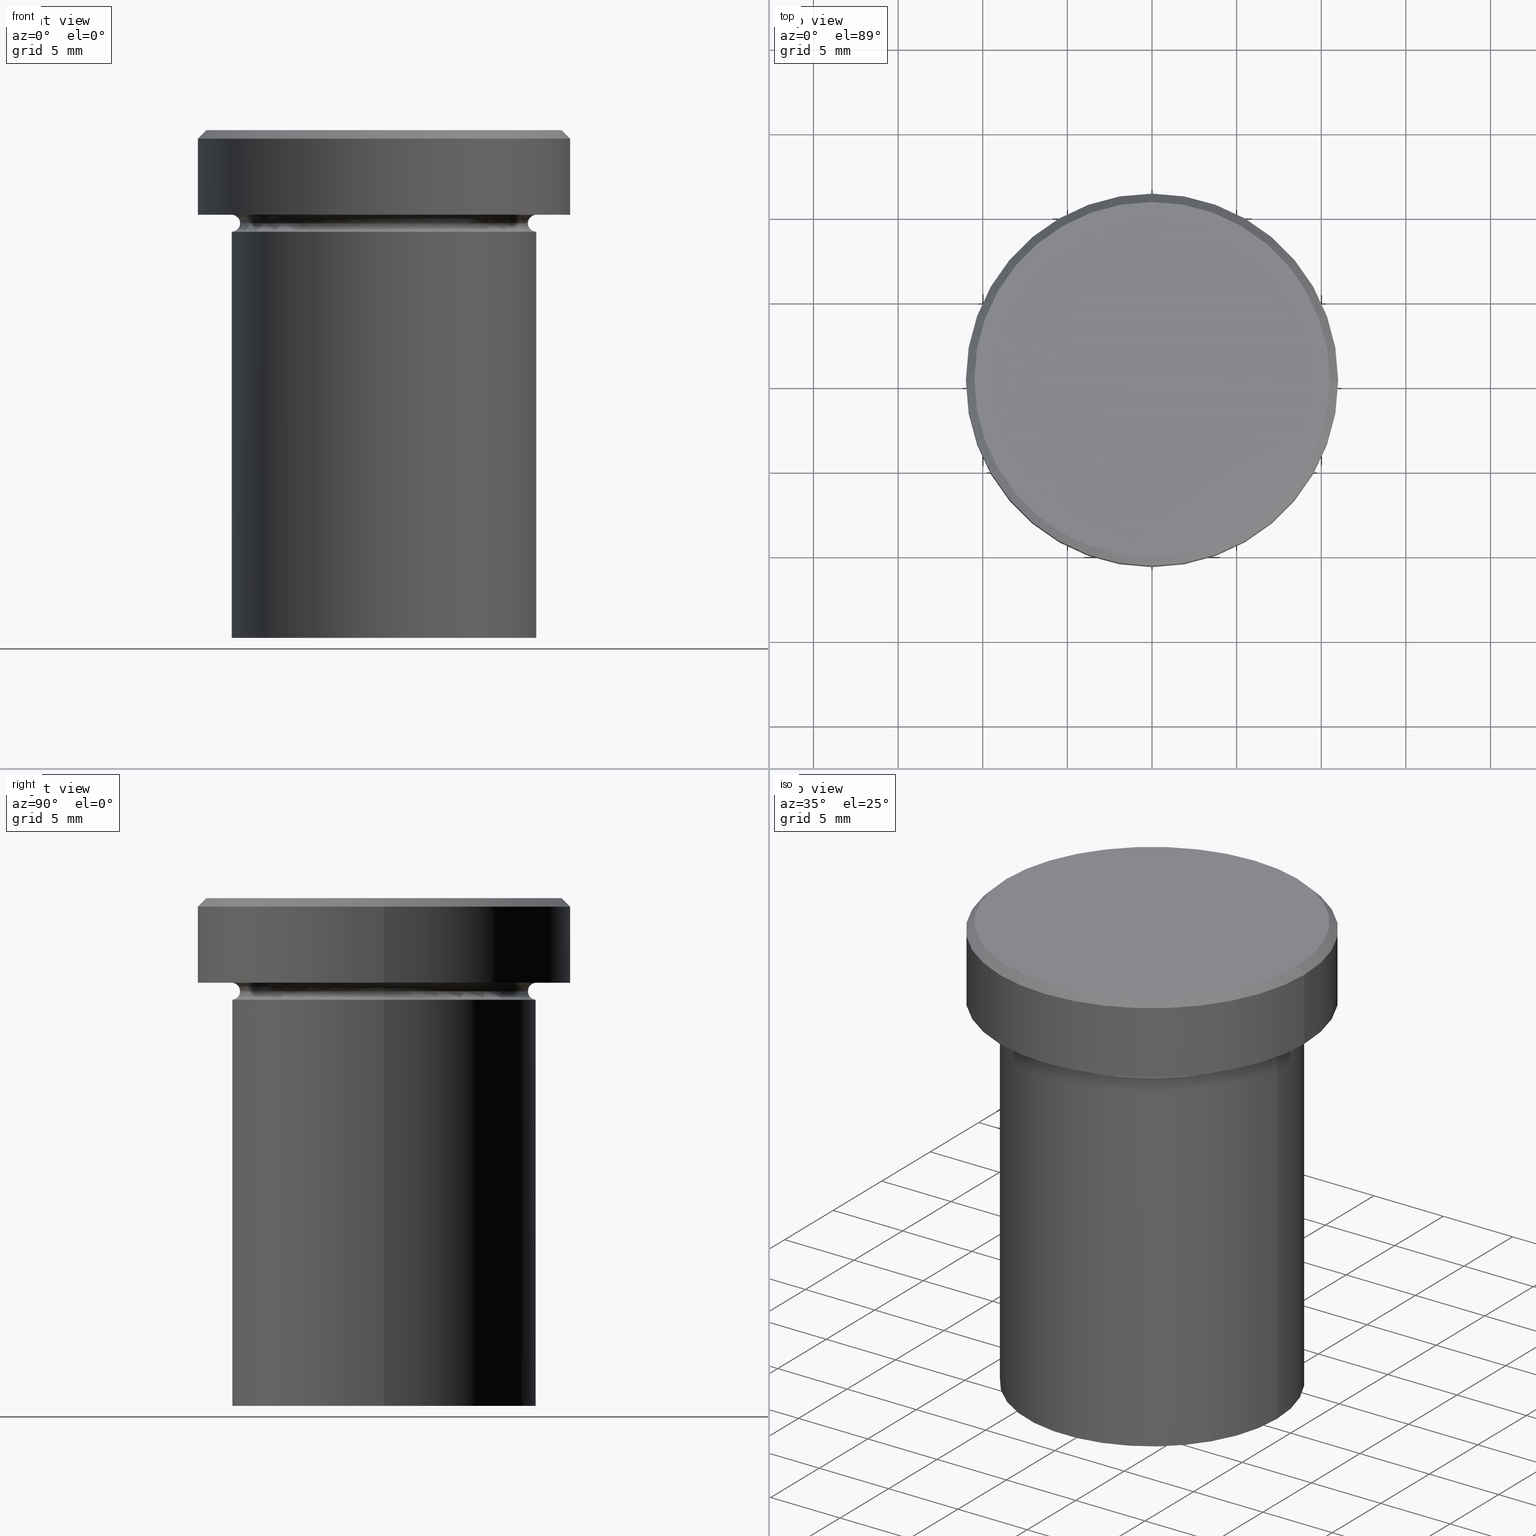
[diagram: canonical four-view strip — front | top / right | iso, engineering-drawing reading convention]
A machine part, canonical four-view strip (front | top / right | iso — engineering-drawing reading convention). The complete STEP part file that produces these views, byte-faithful:
ISO-10303-21;
HEADER;
FILE_DESCRIPTION (( 'STEP AP203' ),
    '1' );
FILE_NAME ('3700.STEP',
    '2024-01-02T22:01:14',
    ( '' ),
    ( '' ),
    'SwSTEP 2.0',
    'SolidWorks 2019',
    '' );
FILE_SCHEMA (( 'CONFIG_CONTROL_DESIGN' ));
ENDSEC;

DATA;
#1 = CARTESIAN_POINT ( 'NONE',  ( 0.000000000000000000, 11.00000000000000000, -5.000000000000000000 ) ) ;
#2 = DATE_AND_TIME ( #245, #222 ) ;
#3 = EDGE_CURVE ( 'NONE', #217, #158, #297, .T. ) ;
#4 = APPROVAL_ROLE ( '' ) ;
#5 = EDGE_LOOP ( 'NONE', ( #279, #346, #209, #164 ) ) ;
#6 = CARTESIAN_POINT ( 'NONE',  ( 0.000000000000000000, 9.000000000000000000, -30.00000000000000000 ) ) ;
#7 = TOROIDAL_SURFACE ( 'NONE', #42, 9.000000000000000000, 0.5000000000000000000 ) ;
#8 =( GEOMETRIC_REPRESENTATION_CONTEXT ( 3 ) GLOBAL_UNCERTAINTY_ASSIGNED_CONTEXT ( ( #397 ) ) GLOBAL_UNIT_ASSIGNED_CONTEXT ( ( #310, #129, #348 ) ) REPRESENTATION_CONTEXT ( 'NONE', 'WORKASPACE' ) );
#9 = ADVANCED_FACE ( 'NONE', ( #95 ), #268, .T. ) ;
#10 = ORIENTED_EDGE ( 'NONE', *, *, #102, .T. ) ;
#11 = PERSON_AND_ORGANIZATION_ROLE ( 'design_supplier' ) ;
#12 = LINE ( 'NONE', #354, #38 ) ;
#13 = DIRECTION ( 'NONE',  ( -0.000000000000000000, -0.000000000000000000, 1.000000000000000000 ) ) ;
#14 = APPROVAL_STATUS ( 'not_yet_approved' ) ;
#15 = DIRECTION ( 'NONE',  ( 1.000000000000000000, 0.000000000000000000, 0.000000000000000000 ) ) ;
#16 = PRODUCT_DEFINITION ( 'NEZN�M�', '', #306, #99 ) ;
#17 = LOCAL_TIME ( 23, 1, 14.00000000000000000, #27 ) ;
#18 = DIRECTION ( 'NONE',  ( -1.000000000000000000, 0.000000000000000000, 0.000000000000000000 ) ) ;
#19 = DIRECTION ( 'NONE',  ( -0.000000000000000000, -0.000000000000000000, 1.000000000000000000 ) ) ;
#20 = DIRECTION ( 'NONE',  ( 0.000000000000000000, 0.000000000000000000, -1.000000000000000000 ) ) ;
#21 = ORIENTED_EDGE ( 'NONE', *, *, #333, .T. ) ;
#22 = CARTESIAN_POINT ( 'NONE',  ( -11.00000000000000000, 1.347111479062088405E-15, -5.000000000000000000 ) ) ;
#23 = DIRECTION ( 'NONE',  ( 1.000000000000000000, 0.000000000000000000, 0.000000000000000000 ) ) ;
#24 = AXIS2_PLACEMENT_3D ( 'NONE', #198, #293, #288 ) ;
#25 = ADVANCED_FACE ( 'NONE', ( #400 ), #238, .T. ) ;
#26 = FACE_OUTER_BOUND ( 'NONE', #29, .T. ) ;
#27 = COORDINATED_UNIVERSAL_TIME_OFFSET ( 1, 0, .AHEAD. ) ;
#28 = DIRECTION ( 'NONE',  ( -0.000000000000000000, -0.000000000000000000, 1.000000000000000000 ) ) ;
#29 = EDGE_LOOP ( 'NONE', ( #351, #173, #393, #36 ) ) ;
#30 = ADVANCED_BREP_SHAPE_REPRESENTATION ( '3700', ( #148, #212 ), #8 ) ;
#31 = CC_DESIGN_DATE_AND_TIME_ASSIGNMENT ( #392, #258, ( #16 ) ) ;
#32 = AXIS2_PLACEMENT_3D ( 'NONE', #196, #256, #200 ) ;
#33 = DIRECTION ( 'NONE',  ( -0.000000000000000000, -0.000000000000000000, 1.000000000000000000 ) ) ;
#34 = DIRECTION ( 'NONE',  ( 0.000000000000000000, 0.000000000000000000, 1.000000000000000000 ) ) ;
#35 = VERTEX_POINT ( 'NONE', #335 ) ;
#36 = ORIENTED_EDGE ( 'NONE', *, *, #119, .T. ) ;
#37 = APPROVAL ( #281, 'NEUR�EN�' ) ;
#38 = VECTOR ( 'NONE', #19, 1000.000000000000000 ) ;
#39 = DIRECTION ( 'NONE',  ( -0.7071067811865474617, 0.000000000000000000, -0.7071067811865474617 ) ) ;
#40 = EDGE_CURVE ( 'NONE', #407, #46, #312, .T. ) ;
#41 = ORIENTED_EDGE ( 'NONE', *, *, #190, .F. ) ;
#42 = AXIS2_PLACEMENT_3D ( 'NONE', #83, #13, #249 ) ;
#43 = COORDINATED_UNIVERSAL_TIME_OFFSET ( 1, 0, .AHEAD. ) ;
#44 = DIRECTION ( 'NONE',  ( 0.000000000000000000, 0.000000000000000000, -1.000000000000000000 ) ) ;
#45 = FACE_OUTER_BOUND ( 'NONE', #369, .T. ) ;
#46 = VERTEX_POINT ( 'NONE', #180 ) ;
#47 = CARTESIAN_POINT ( 'NONE',  ( 11.00000000000000000, 0.000000000000000000, 0.000000000000000000 ) ) ;
#48 = CARTESIAN_POINT ( 'NONE',  ( -8.499999999999998224, 1.071565949253933927E-15, -5.500000000000000000 ) ) ;
#49 = CONICAL_SURFACE ( 'NONE', #72, 10.49999999999999822, 0.7853981633974482790 ) ;
#50 = CARTESIAN_POINT ( 'NONE',  ( 0.000000000000000000, 0.000000000000000000, -5.000000000000000000 ) ) ;
#51 = CALENDAR_DATE ( 2024, 2, 1 ) ;
#52 = DIRECTION ( 'NONE',  ( 0.000000000000000000, -1.000000000000000000, 0.000000000000000000 ) ) ;
#53 = APPROVAL_DATE_TIME ( #328, #309 ) ;
#54 = CC_DESIGN_PERSON_AND_ORGANIZATION_ASSIGNMENT ( #381, #11, ( #306 ) ) ;
#55 = DIRECTION ( 'NONE',  ( 1.000000000000000000, 0.000000000000000000, 0.000000000000000000 ) ) ;
#56 = DIRECTION ( 'NONE',  ( 0.000000000000000000, 0.000000000000000000, -1.000000000000000000 ) ) ;
#57 = CIRCLE ( 'NONE', #359, 0.5000000000000004441 ) ;
#58 = CC_DESIGN_SECURITY_CLASSIFICATION ( #139, ( #306 ) ) ;
#59 = ORIENTED_EDGE ( 'NONE', *, *, #40, .T. ) ;
#60 = ADVANCED_FACE ( 'NONE', ( #26 ), #301, .T. ) ;
#61 = ORIENTED_EDGE ( 'NONE', *, *, #247, .T. ) ;
#62 = ORIENTED_EDGE ( 'NONE', *, *, #280, .T. ) ;
#63 = DIRECTION ( 'NONE',  ( -0.000000000000000000, -0.000000000000000000, 1.000000000000000000 ) ) ;
#64 = CIRCLE ( 'NONE', #401, 9.000000000000000000 ) ;
#65 = ORIENTED_EDGE ( 'NONE', *, *, #259, .T. ) ;
#66 = CARTESIAN_POINT ( 'NONE',  ( 0.000000000000000000, 0.000000000000000000, -5.000000000000000000 ) ) ;
#67 = EDGE_CURVE ( 'NONE', #253, #208, #110, .T. ) ;
#68 = DIRECTION ( 'NONE',  ( 0.000000000000000000, 0.000000000000000000, -1.000000000000000000 ) ) ;
#69 = FACE_OUTER_BOUND ( 'NONE', #316, .T. ) ;
#70 = CARTESIAN_POINT ( 'NONE',  ( -11.00000000000000000, 1.347111479062088405E-15, -0.5000000000000004441 ) ) ;
#71 = PERSON_AND_ORGANIZATION_ROLE ( 'creator' ) ;
#72 = AXIS2_PLACEMENT_3D ( 'NONE', #390, #20, #18 ) ;
#73 = DATE_AND_TIME ( #243, #177 ) ;
#74 = CARTESIAN_POINT ( 'NONE',  ( 11.00000000000000000, 0.000000000000000000, -0.5000000000000004441 ) ) ;
#75 = EDGE_CURVE ( 'NONE', #35, #108, #271, .T. ) ;
#76 = PERSON_AND_ORGANIZATION ( #260, #395 ) ;
#77 = PERSON_AND_ORGANIZATION ( #260, #395 ) ;
#78 = APPROVAL_DATE_TIME ( #2, #319 ) ;
#79 = AXIS2_PLACEMENT_3D ( 'NONE', #361, #320, #97 ) ;
#80 = CC_DESIGN_APPROVAL ( #309, ( #139 ) ) ;
#81 = ORIENTED_EDGE ( 'NONE', *, *, #333, .F. ) ;
#82 = EDGE_LOOP ( 'NONE', ( #137, #123, #121, #380 ) ) ;
#83 = CARTESIAN_POINT ( 'NONE',  ( 0.000000000000000000, 0.000000000000000000, -5.500000000000000000 ) ) ;
#84 = CC_DESIGN_PERSON_AND_ORGANIZATION_ASSIGNMENT ( #365, #206, ( #302 ) ) ;
#85 = APPROVAL_ROLE ( '' ) ;
#86 = DIRECTION ( 'NONE',  ( -0.000000000000000000, -0.000000000000000000, 1.000000000000000000 ) ) ;
#87 = ORIENTED_EDGE ( 'NONE', *, *, #119, .F. ) ;
#88 = CALENDAR_DATE ( 2024, 2, 1 ) ;
#89 = CIRCLE ( 'NONE', #305, 11.00000000000000000 ) ;
#90 = FACE_OUTER_BOUND ( 'NONE', #287, .T. ) ;
#91 = APPROVAL_PERSON_ORGANIZATION ( #76, #37, #4 ) ;
#92 = EDGE_CURVE ( 'NONE', #321, #367, #159, .T. ) ;
#93 = PERSON_AND_ORGANIZATION ( #260, #395 ) ;
#94 = CARTESIAN_POINT ( 'NONE',  ( 0.000000000000000000, 0.000000000000000000, -6.000000000000000000 ) ) ;
#95 = FACE_OUTER_BOUND ( 'NONE', #270, .T. ) ;
#96 = DIRECTION ( 'NONE',  ( -0.000000000000000000, -0.000000000000000000, 1.000000000000000000 ) ) ;
#97 = DIRECTION ( 'NONE',  ( 0.000000000000000000, 0.000000000000000000, -1.000000000000000000 ) ) ;
#98 = ORIENTED_EDGE ( 'NONE', *, *, #202, .F. ) ;
#99 = DESIGN_CONTEXT ( 'detailed design', #355, 'design' ) ;
#100 = DIRECTION ( 'NONE',  ( 1.000000000000000000, 0.000000000000000000, 0.000000000000000000 ) ) ;
#101 = CIRCLE ( 'NONE', #138, 11.00000000000000000 ) ;
#102 = EDGE_CURVE ( 'NONE', #46, #299, #104, .T. ) ;
#103 = DIRECTION ( 'NONE',  ( 0.7071067811865474617, 8.659560562354932858E-17, -0.7071067811865474617 ) ) ;
#104 = LINE ( 'NONE', #162, #195 ) ;
#105 = LOCAL_TIME ( 23, 1, 14.00000000000000000, #43 ) ;
#106 = DIRECTION ( 'NONE',  ( -1.000000000000000000, -1.224646799147353454E-16, 0.000000000000000000 ) ) ;
#107 = FACE_OUTER_BOUND ( 'NONE', #5, .T. ) ;
#108 = VERTEX_POINT ( 'NONE', #74 ) ;
#109 = CARTESIAN_POINT ( 'NONE',  ( 0.000000000000000000, 0.000000000000000000, 0.000000000000000000 ) ) ;
#110 = CIRCLE ( 'NONE', #199, 8.499999999999998224 ) ;
#111 = ORIENTED_EDGE ( 'NONE', *, *, #92, .T. ) ;
#112 = DIRECTION ( 'NONE',  ( -1.000000000000000000, 0.000000000000000000, 0.000000000000000000 ) ) ;
#113 = DIRECTION ( 'NONE',  ( -0.000000000000000000, -0.000000000000000000, 1.000000000000000000 ) ) ;
#114 = EDGE_CURVE ( 'NONE', #219, #35, #221, .T. ) ;
#115 = SHAPE_DEFINITION_REPRESENTATION ( #236, #30 ) ;
#116 = AXIS2_PLACEMENT_3D ( 'NONE', #376, #342, #383 ) ;
#117 = CARTESIAN_POINT ( 'NONE',  ( 0.000000000000000000, 0.000000000000000000, 0.000000000000000000 ) ) ;
#118 = CARTESIAN_POINT ( 'NONE',  ( 0.000000000000000000, 0.000000000000000000, -30.00000000000000000 ) ) ;
#119 = EDGE_CURVE ( 'NONE', #108, #158, #170, .T. ) ;
#120 = VECTOR ( 'NONE', #231, 1000.000000000000000 ) ;
#121 = ORIENTED_EDGE ( 'NONE', *, *, #404, .F. ) ;
#122 = CARTESIAN_POINT ( 'NONE',  ( 0.000000000000000000, 0.000000000000000000, 0.000000000000000000 ) ) ;
#123 = ORIENTED_EDGE ( 'NONE', *, *, #75, .T. ) ;
#124 = MECHANICAL_CONTEXT ( 'NONE', #224, 'mechanical' ) ;
#125 = ORIENTED_EDGE ( 'NONE', *, *, #370, .F. ) ;
#126 = ADVANCED_FACE ( 'NONE', ( #172 ), #203, .F. ) ;
#127 = CARTESIAN_POINT ( 'NONE',  ( 9.000000000000000000, 1.102182119232617714E-15, -5.500000000000000000 ) ) ;
#128 = PLANE ( 'NONE',  #338 ) ;
#129 =( NAMED_UNIT ( * ) PLANE_ANGLE_UNIT ( ) SI_UNIT ( $, .RADIAN. ) );
#130 = ORIENTED_EDGE ( 'NONE', *, *, #75, .F. ) ;
#131 = EDGE_CURVE ( 'NONE', #407, #303, #12, .T. ) ;
#132 = CIRCLE ( 'NONE', #292, 9.000000000000000000 ) ;
#133 = CC_DESIGN_APPROVAL ( #319, ( #306 ) ) ;
#134 = DIRECTION ( 'NONE',  ( 0.000000000000000000, -0.000000000000000000, 1.000000000000000000 ) ) ;
#135 = APPLICATION_PROTOCOL_DEFINITION ( 'international standard', 'config_control_design', 1994, #224 ) ;
#136 = EDGE_CURVE ( 'NONE', #217, #214, #101, .T. ) ;
#137 = ORIENTED_EDGE ( 'NONE', *, *, #182, .F. ) ;
#138 = AXIS2_PLACEMENT_3D ( 'NONE', #387, #174, #150 ) ;
#139 = SECURITY_CLASSIFICATION ( '', '', #322 ) ;
#140 = CARTESIAN_POINT ( 'NONE',  ( -10.49999999999999822, 0.000000000000000000, 0.000000000000000000 ) ) ;
#141 = ADVANCED_FACE ( 'NONE', ( #69 ), #188, .T. ) ;
#142 = CIRCLE ( 'NONE', #324, 8.499999999999998224 ) ;
#143 = EDGE_LOOP ( 'NONE', ( #111, #62 ) ) ;
#144 = PERSON_AND_ORGANIZATION ( #260, #395 ) ;
#145 = CARTESIAN_POINT ( 'NONE',  ( 0.000000000000000000, 0.000000000000000000, 0.000000000000000000 ) ) ;
#146 = ORIENTED_EDGE ( 'NONE', *, *, #171, .T. ) ;
#147 = EDGE_CURVE ( 'NONE', #303, #299, #64, .T. ) ;
#148 = MANIFOLD_SOLID_BREP ( 'Zkosen�1', #151 ) ;
#149 = DIRECTION ( 'NONE',  ( 1.000000000000000000, 0.000000000000000000, 0.000000000000000000 ) ) ;
#150 = DIRECTION ( 'NONE',  ( 1.000000000000000000, 0.000000000000000000, 0.000000000000000000 ) ) ;
#151 = CLOSED_SHELL ( 'NONE', ( #339, #126, #155, #25, #9, #141, #349, #60, #160, #197, #327, #295, #218 ) ) ;
#152 = CIRCLE ( 'NONE', #204, 0.5000000000000004441 ) ;
#153 = CARTESIAN_POINT ( 'NONE',  ( 0.000000000000000000, 0.000000000000000000, -5.000000000000000000 ) ) ;
#154 = DIRECTION ( 'NONE',  ( 1.000000000000000000, 0.000000000000000000, 0.000000000000000000 ) ) ;
#155 = ADVANCED_FACE ( 'NONE', ( #300 ), #364, .F. ) ;
#156 = DIRECTION ( 'NONE',  ( 1.000000000000000000, 0.000000000000000000, 0.000000000000000000 ) ) ;
#157 = CARTESIAN_POINT ( 'NONE',  ( 0.000000000000000000, 0.000000000000000000, 0.000000000000000000 ) ) ;
#158 = VERTEX_POINT ( 'NONE', #70 ) ;
#159 = CIRCLE ( 'NONE', #226, 9.000000000000000000 ) ;
#160 = ADVANCED_FACE ( 'NONE', ( #284, #186 ), #128, .T. ) ;
#161 = DIRECTION ( 'NONE',  ( 1.224646799147353207E-16, 1.000000000000000000, 0.000000000000000000 ) ) ;
#162 = CARTESIAN_POINT ( 'NONE',  ( 9.000000000000000000, 0.000000000000000000, 0.000000000000000000 ) ) ;
#163 = DIRECTION ( 'NONE',  ( -1.000000000000000000, 0.000000000000000000, 0.000000000000000000 ) ) ;
#164 = ORIENTED_EDGE ( 'NONE', *, *, #280, .F. ) ;
#165 = CIRCLE ( 'NONE', #215, 10.49999999999999822 ) ;
#166 = APPROVAL_PERSON_ORGANIZATION ( #93, #309, #252 ) ;
#167 = CARTESIAN_POINT ( 'NONE',  ( 0.000000000000000000, 0.000000000000000000, -0.5000000000000004441 ) ) ;
#168 = CARTESIAN_POINT ( 'NONE',  ( -9.000000000000000000, 0.000000000000000000, -4.999999999999999112 ) ) ;
#169 = FACE_OUTER_BOUND ( 'NONE', #181, .T. ) ;
#170 = CIRCLE ( 'NONE', #388, 11.00000000000000000 ) ;
#171 = EDGE_CURVE ( 'NONE', #219, #158, #216, .T. ) ;
#172 = FACE_OUTER_BOUND ( 'NONE', #334, .T. ) ;
#173 = ORIENTED_EDGE ( 'NONE', *, *, #136, .T. ) ;
#174 = DIRECTION ( 'NONE',  ( -0.000000000000000000, -0.000000000000000000, 1.000000000000000000 ) ) ;
#175 = AXIS2_PLACEMENT_3D ( 'NONE', #6, #382, #296 ) ;
#176 = CONICAL_SURFACE ( 'NONE', #325, 10.49999999999999822, 0.7853981633974482790 ) ;
#177 = LOCAL_TIME ( 23, 1, 14.00000000000000000, #379 ) ;
#178 = DIRECTION ( 'NONE',  ( -1.000000000000000000, 0.000000000000000000, 0.000000000000000000 ) ) ;
#179 = ORIENTED_EDGE ( 'NONE', *, *, #398, .F. ) ;
#180 = CARTESIAN_POINT ( 'NONE',  ( 9.000000000000000000, 0.000000000000000000, -30.00000000000000000 ) ) ;
#181 = EDGE_LOOP ( 'NONE', ( #130, #193, #146, #87 ) ) ;
#182 = EDGE_CURVE ( 'NONE', #35, #219, #165, .T. ) ;
#183 = TOROIDAL_SURFACE ( 'NONE', #343, 9.000000000000000000, 0.5000000000000000000 ) ;
#184 = CARTESIAN_POINT ( 'NONE',  ( 0.000000000000000000, 0.000000000000000000, 0.000000000000000000 ) ) ;
#185 = CARTESIAN_POINT ( 'NONE',  ( 9.000000000000000000, 0.000000000000000000, -6.000000000000000000 ) ) ;
#186 = FACE_OUTER_BOUND ( 'NONE', #358, .T. ) ;
#187 = DIRECTION ( 'NONE',  ( -0.000000000000000000, -0.000000000000000000, 1.000000000000000000 ) ) ;
#188 = PLANE ( 'NONE',  #175 ) ;
#189 = AXIS2_PLACEMENT_3D ( 'NONE', #244, #63, #156 ) ;
#190 = EDGE_CURVE ( 'NONE', #208, #253, #142, .T. ) ;
#191 = APPROVAL_DATE_TIME ( #73, #37 ) ;
#192 = ORIENTED_EDGE ( 'NONE', *, *, #190, .T. ) ;
#193 = ORIENTED_EDGE ( 'NONE', *, *, #114, .F. ) ;
#194 = CC_DESIGN_PERSON_AND_ORGANIZATION_ASSIGNMENT ( #77, #71, ( #306 ) ) ;
#195 = VECTOR ( 'NONE', #403, 1000.000000000000000 ) ;
#196 = CARTESIAN_POINT ( 'NONE',  ( 0.000000000000000000, 0.000000000000000000, 0.000000000000000000 ) ) ;
#197 = ADVANCED_FACE ( 'NONE', ( #230 ), #294, .T. ) ;
#198 = CARTESIAN_POINT ( 'NONE',  ( 0.000000000000000000, 0.000000000000000000, -5.500000000000000000 ) ) ;
#199 = AXIS2_PLACEMENT_3D ( 'NONE', #229, #33, #149 ) ;
#200 = DIRECTION ( 'NONE',  ( 1.000000000000000000, 0.000000000000000000, 0.000000000000000000 ) ) ;
#201 = DIRECTION ( 'NONE',  ( -0.000000000000000000, -0.000000000000000000, 1.000000000000000000 ) ) ;
#202 = EDGE_CURVE ( 'NONE', #208, #321, #241, .T. ) ;
#203 = TOROIDAL_SURFACE ( 'NONE', #24, 9.000000000000000000, 0.5000000000000000000 ) ;
#204 = AXIS2_PLACEMENT_3D ( 'NONE', #273, #161, #314 ) ;
#205 = DIRECTION ( 'NONE',  ( 1.000000000000000000, 0.000000000000000000, 0.000000000000000000 ) ) ;
#206 = PERSON_AND_ORGANIZATION_ROLE ( 'design_owner' ) ;
#207 = EDGE_CURVE ( 'NONE', #253, #299, #57, .T. ) ;
#208 = VERTEX_POINT ( 'NONE', #48 ) ;
#209 = ORIENTED_EDGE ( 'NONE', *, *, #202, .T. ) ;
#210 = DIRECTION ( 'NONE',  ( 1.000000000000000000, 0.000000000000000000, 0.000000000000000000 ) ) ;
#211 = AXIS2_PLACEMENT_3D ( 'NONE', #127, #366, #106 ) ;
#212 = AXIS2_PLACEMENT_3D ( 'NONE', #122, #34, #154 ) ;
#213 = ORIENTED_EDGE ( 'NONE', *, *, #247, .F. ) ;
#214 = VERTEX_POINT ( 'NONE', #357 ) ;
#215 = AXIS2_PLACEMENT_3D ( 'NONE', #145, #239, #308 ) ;
#216 = LINE ( 'NONE', #345, #272 ) ;
#217 = VERTEX_POINT ( 'NONE', #22 ) ;
#218 = ADVANCED_FACE ( 'NONE', ( #169 ), #49, .T. ) ;
#219 = VERTEX_POINT ( 'NONE', #140 ) ;
#220 = EDGE_LOOP ( 'NONE', ( #41, #337, #227, #240 ) ) ;
#221 = CIRCLE ( 'NONE', #116, 10.49999999999999822 ) ;
#222 = LOCAL_TIME ( 23, 1, 14.00000000000000000, #248 ) ;
#223 = PERSON_AND_ORGANIZATION ( #260, #395 ) ;
#224 = APPLICATION_CONTEXT ( 'configuration controlled 3d designs of mechanical parts and assemblies' ) ;
#225 = DIRECTION ( 'NONE',  ( 1.000000000000000000, 0.000000000000000000, 0.000000000000000000 ) ) ;
#226 = AXIS2_PLACEMENT_3D ( 'NONE', #153, #187, #374 ) ;
#227 = ORIENTED_EDGE ( 'NONE', *, *, #147, .T. ) ;
#228 = CARTESIAN_POINT ( 'NONE',  ( 0.000000000000000000, 0.000000000000000000, -5.500000000000000000 ) ) ;
#229 = CARTESIAN_POINT ( 'NONE',  ( 0.000000000000000000, 0.000000000000000000, -5.500000000000000000 ) ) ;
#230 = FACE_OUTER_BOUND ( 'NONE', #315, .T. ) ;
#231 = DIRECTION ( 'NONE',  ( -0.000000000000000000, -0.000000000000000000, 1.000000000000000000 ) ) ;
#232 = DIRECTION ( 'NONE',  ( -0.000000000000000000, -0.000000000000000000, 1.000000000000000000 ) ) ;
#233 = VECTOR ( 'NONE', #103, 1000.000000000000114 ) ;
#234 = ORIENTED_EDGE ( 'NONE', *, *, #136, .F. ) ;
#235 = DIRECTION ( 'NONE',  ( -0.000000000000000000, -0.000000000000000000, 1.000000000000000000 ) ) ;
#236 = PRODUCT_DEFINITION_SHAPE ( 'NONE', 'NONE',  #16 ) ;
#237 = CARTESIAN_POINT ( 'NONE',  ( 0.000000000000000000, 0.000000000000000000, -6.000000000000000000 ) ) ;
#238 = CYLINDRICAL_SURFACE ( 'NONE', #285, 9.000000000000000000 ) ;
#239 = DIRECTION ( 'NONE',  ( -0.000000000000000000, -0.000000000000000000, 1.000000000000000000 ) ) ;
#240 = ORIENTED_EDGE ( 'NONE', *, *, #207, .F. ) ;
#241 = CIRCLE ( 'NONE', #79, 0.5000000000000004441 ) ;
#242 = PRODUCT_RELATED_PRODUCT_CATEGORY ( 'detail', '', ( #302 ) ) ;
#243 = CALENDAR_DATE ( 2024, 2, 1 ) ;
#244 = CARTESIAN_POINT ( 'NONE',  ( 0.000000000000000000, 0.000000000000000000, -5.500000000000000000 ) ) ;
#245 = CALENDAR_DATE ( 2024, 2, 1 ) ;
#246 = AXIS2_PLACEMENT_3D ( 'NONE', #118, #201, #330 ) ;
#247 = EDGE_CURVE ( 'NONE', #214, #217, #89, .T. ) ;
#248 = COORDINATED_UNIVERSAL_TIME_OFFSET ( 1, 0, .AHEAD. ) ;
#249 = DIRECTION ( 'NONE',  ( 1.000000000000000000, 0.000000000000000000, 0.000000000000000000 ) ) ;
#250 = ORIENTED_EDGE ( 'NONE', *, *, #207, .T. ) ;
#251 = DIRECTION ( 'NONE',  ( 0.000000000000000000, 0.000000000000000000, -1.000000000000000000 ) ) ;
#252 = APPROVAL_ROLE ( '' ) ;
#253 = VERTEX_POINT ( 'NONE', #277 ) ;
#254 = DIRECTION ( 'NONE',  ( 1.000000000000000000, 0.000000000000000000, 0.000000000000000000 ) ) ;
#255 = CARTESIAN_POINT ( 'NONE',  ( 9.000000000000000000, 1.102182119232617714E-15, -4.999999999999999112 ) ) ;
#256 = DIRECTION ( 'NONE',  ( -0.000000000000000000, -0.000000000000000000, 1.000000000000000000 ) ) ;
#257 = AXIS2_PLACEMENT_3D ( 'NONE', #307, #341, #210 ) ;
#258 = DATE_TIME_ROLE ( 'creation_date' ) ;
#259 = EDGE_CURVE ( 'NONE', #299, #303, #409, .T. ) ;
#260 = PERSON ( 'NEUR�EN�', 'NEUR�EN�', 'NEUR�EN�', ('NEUR�EN�'), ('NEUR�EN�'), ('NEUR�EN�') ) ;
#261 = COORDINATED_UNIVERSAL_TIME_OFFSET ( 1, 0, .AHEAD. ) ;
#262 = ORIENTED_EDGE ( 'NONE', *, *, #114, .T. ) ;
#263 = EDGE_CURVE ( 'NONE', #253, #367, #298, .T. ) ;
#264 = AXIS2_PLACEMENT_3D ( 'NONE', #237, #368, #100 ) ;
#265 = LOCAL_TIME ( 23, 1, 14.00000000000000000, #261 ) ;
#266 = DIRECTION ( 'NONE',  ( 1.000000000000000000, 0.000000000000000000, 0.000000000000000000 ) ) ;
#267 = DIRECTION ( 'NONE',  ( -0.000000000000000000, -0.000000000000000000, 1.000000000000000000 ) ) ;
#268 = CYLINDRICAL_SURFACE ( 'NONE', #394, 11.00000000000000000 ) ;
#269 = CC_DESIGN_PERSON_AND_ORGANIZATION_ASSIGNMENT ( #144, #399, ( #139 ) ) ;
#270 = EDGE_LOOP ( 'NONE', ( #61, #371, #326, #125 ) ) ;
#271 = LINE ( 'NONE', #402, #233 ) ;
#272 = VECTOR ( 'NONE', #39, 1000.000000000000114 ) ;
#273 = CARTESIAN_POINT ( 'NONE',  ( -9.000000000000000000, 1.102182119232617714E-15, -5.500000000000000000 ) ) ;
#274 = ORIENTED_EDGE ( 'NONE', *, *, #131, .T. ) ;
#275 = DIRECTION ( 'NONE',  ( -0.000000000000000000, -0.000000000000000000, 1.000000000000000000 ) ) ;
#276 = DIRECTION ( 'NONE',  ( 1.000000000000000000, 0.000000000000000000, 0.000000000000000000 ) ) ;
#277 = CARTESIAN_POINT ( 'NONE',  ( 8.499999999999998224, 0.000000000000000000, -5.500000000000000000 ) ) ;
#278 = CARTESIAN_POINT ( 'NONE',  ( -9.000000000000000000, 1.102182119232617714E-15, -6.000000000000000000 ) ) ;
#279 = ORIENTED_EDGE ( 'NONE', *, *, #263, .F. ) ;
#280 = EDGE_CURVE ( 'NONE', #367, #321, #132, .T. ) ;
#281 = APPROVAL_STATUS ( 'not_yet_approved' ) ;
#282 = AXIS2_PLACEMENT_3D ( 'NONE', #323, #113, #225 ) ;
#283 = CARTESIAN_POINT ( 'NONE',  ( -9.000000000000000000, 1.102182119232617714E-15, -30.00000000000000000 ) ) ;
#284 = FACE_BOUND ( 'NONE', #143, .T. ) ;
#285 = AXIS2_PLACEMENT_3D ( 'NONE', #157, #275, #205 ) ;
#286 = CIRCLE ( 'NONE', #257, 11.00000000000000000 ) ;
#287 = EDGE_LOOP ( 'NONE', ( #262, #378 ) ) ;
#288 = DIRECTION ( 'NONE',  ( -1.000000000000000000, 0.000000000000000000, 0.000000000000000000 ) ) ;
#289 = DATE_TIME_ROLE ( 'classification_date' ) ;
#290 = CARTESIAN_POINT ( 'NONE',  ( 0.000000000000000000, 0.000000000000000000, 0.000000000000000000 ) ) ;
#291 = ORIENTED_EDGE ( 'NONE', *, *, #259, .F. ) ;
#292 = AXIS2_PLACEMENT_3D ( 'NONE', #66, #28, #163 ) ;
#293 = DIRECTION ( 'NONE',  ( 0.000000000000000000, 0.000000000000000000, -1.000000000000000000 ) ) ;
#294 = CYLINDRICAL_SURFACE ( 'NONE', #32, 9.000000000000000000 ) ;
#295 = ADVANCED_FACE ( 'NONE', ( #107 ), #183, .F. ) ;
#296 = DIRECTION ( 'NONE',  ( -1.000000000000000000, 0.000000000000000000, -0.000000000000000000 ) ) ;
#297 = LINE ( 'NONE', #362, #375 ) ;
#298 = CIRCLE ( 'NONE', #211, 0.5000000000000004441 ) ;
#299 = VERTEX_POINT ( 'NONE', #185 ) ;
#300 = FACE_OUTER_BOUND ( 'NONE', #220, .T. ) ;
#301 = CYLINDRICAL_SURFACE ( 'NONE', #332, 11.00000000000000000 ) ;
#302 = PRODUCT ( '3700', '3700', '', ( #124 ) ) ;
#303 = VERTEX_POINT ( 'NONE', #278 ) ;
#304 = DIRECTION ( 'NONE',  ( 1.000000000000000000, 0.000000000000000000, 0.000000000000000000 ) ) ;
#305 = AXIS2_PLACEMENT_3D ( 'NONE', #50, #86, #276 ) ;
#306 = PRODUCT_DEFINITION_FORMATION_WITH_SPECIFIED_SOURCE ( 'LIBOVOLN�', '', #302, .NOT_KNOWN. ) ;
#307 = CARTESIAN_POINT ( 'NONE',  ( 0.000000000000000000, 0.000000000000000000, -0.5000000000000004441 ) ) ;
#308 = DIRECTION ( 'NONE',  ( 1.000000000000000000, 0.000000000000000000, 0.000000000000000000 ) ) ;
#309 = APPROVAL ( #14, 'NEUR�EN�' ) ;
#310 =( LENGTH_UNIT ( ) NAMED_UNIT ( * ) SI_UNIT ( .MILLI., .METRE. ) );
#311 = DIRECTION ( 'NONE',  ( -1.000000000000000000, 0.000000000000000000, -0.000000000000000000 ) ) ;
#312 = CIRCLE ( 'NONE', #246, 9.000000000000000000 ) ;
#313 = CC_DESIGN_APPROVAL ( #37, ( #16 ) ) ;
#314 = DIRECTION ( 'NONE',  ( -1.000000000000000000, 1.224646799147353454E-16, 0.000000000000000000 ) ) ;
#315 = EDGE_LOOP ( 'NONE', ( #347, #59, #10, #377 ) ) ;
#316 = EDGE_LOOP ( 'NONE', ( #81, #336 ) ) ;
#317 = CIRCLE ( 'NONE', #282, 9.000000000000000000 ) ;
#318 = CALENDAR_DATE ( 2024, 2, 1 ) ;
#319 = APPROVAL ( #391, 'NEUR�EN�' ) ;
#320 = DIRECTION ( 'NONE',  ( -0.000000000000000000, -1.000000000000000000, -0.000000000000000000 ) ) ;
#321 = VERTEX_POINT ( 'NONE', #168 ) ;
#322 = SECURITY_CLASSIFICATION_LEVEL ( 'unclassified' ) ;
#323 = CARTESIAN_POINT ( 'NONE',  ( 0.000000000000000000, 0.000000000000000000, -30.00000000000000000 ) ) ;
#324 = AXIS2_PLACEMENT_3D ( 'NONE', #228, #96, #55 ) ;
#325 = AXIS2_PLACEMENT_3D ( 'NONE', #290, #251, #112 ) ;
#326 = ORIENTED_EDGE ( 'NONE', *, *, #404, .T. ) ;
#327 = ADVANCED_FACE ( 'NONE', ( #45 ), #7, .F. ) ;
#328 = DATE_AND_TIME ( #88, #17 ) ;
#329 = DATE_AND_TIME ( #51, #105 ) ;
#330 = DIRECTION ( 'NONE',  ( 1.000000000000000000, 0.000000000000000000, 0.000000000000000000 ) ) ;
#331 = CARTESIAN_POINT ( 'NONE',  ( 9.000000000000000000, 0.000000000000000000, -5.500000000000000000 ) ) ;
#332 = AXIS2_PLACEMENT_3D ( 'NONE', #117, #235, #304 ) ;
#333 = EDGE_CURVE ( 'NONE', #46, #407, #317, .T. ) ;
#334 = EDGE_LOOP ( 'NONE', ( #192, #384, #405, #98 ) ) ;
#335 = CARTESIAN_POINT ( 'NONE',  ( 10.49999999999999822, 1.316495309083404420E-15, 0.000000000000000000 ) ) ;
#336 = ORIENTED_EDGE ( 'NONE', *, *, #40, .F. ) ;
#337 = ORIENTED_EDGE ( 'NONE', *, *, #398, .T. ) ;
#338 = AXIS2_PLACEMENT_3D ( 'NONE', #1, #68, #311 ) ;
#339 = ADVANCED_FACE ( 'NONE', ( #356 ), #176, .T. ) ;
#340 = DIRECTION ( 'NONE',  ( 0.000000000000000000, 0.000000000000000000, -1.000000000000000000 ) ) ;
#341 = DIRECTION ( 'NONE',  ( 0.000000000000000000, 0.000000000000000000, -1.000000000000000000 ) ) ;
#342 = DIRECTION ( 'NONE',  ( -0.000000000000000000, -0.000000000000000000, 1.000000000000000000 ) ) ;
#343 = AXIS2_PLACEMENT_3D ( 'NONE', #406, #340, #178 ) ;
#344 = APPROVAL_PERSON_ORGANIZATION ( #353, #319, #85 ) ;
#345 = CARTESIAN_POINT ( 'NONE',  ( -10.49999999999999822, 0.000000000000000000, 0.000000000000000000 ) ) ;
#346 = ORIENTED_EDGE ( 'NONE', *, *, #67, .T. ) ;
#347 = ORIENTED_EDGE ( 'NONE', *, *, #131, .F. ) ;
#348 =( NAMED_UNIT ( * ) SI_UNIT ( $, .STERADIAN. ) SOLID_ANGLE_UNIT ( ) );
#349 = ADVANCED_FACE ( 'NONE', ( #90 ), #385, .T. ) ;
#350 = AXIS2_PLACEMENT_3D ( 'NONE', #109, #134, #15 ) ;
#351 = ORIENTED_EDGE ( 'NONE', *, *, #3, .F. ) ;
#352 = PERSON_AND_ORGANIZATION_ROLE ( 'creator' ) ;
#353 = PERSON_AND_ORGANIZATION ( #260, #395 ) ;
#354 = CARTESIAN_POINT ( 'NONE',  ( -9.000000000000000000, 1.102182119232617714E-15, 0.000000000000000000 ) ) ;
#355 = APPLICATION_CONTEXT ( 'configuration controlled 3d designs of mechanical parts and assemblies' ) ;
#356 = FACE_OUTER_BOUND ( 'NONE', #82, .T. ) ;
#357 = CARTESIAN_POINT ( 'NONE',  ( 11.00000000000000000, 0.000000000000000000, -5.000000000000000000 ) ) ;
#358 = EDGE_LOOP ( 'NONE', ( #213, #234 ) ) ;
#359 = AXIS2_PLACEMENT_3D ( 'NONE', #331, #52, #56 ) ;
#360 = DIRECTION ( 'NONE',  ( -0.000000000000000000, -0.000000000000000000, 1.000000000000000000 ) ) ;
#361 = CARTESIAN_POINT ( 'NONE',  ( -9.000000000000000000, 0.000000000000000000, -5.500000000000000000 ) ) ;
#362 = CARTESIAN_POINT ( 'NONE',  ( -11.00000000000000000, 1.347111479062088405E-15, 0.000000000000000000 ) ) ;
#363 = CC_DESIGN_PERSON_AND_ORGANIZATION_ASSIGNMENT ( #223, #352, ( #16 ) ) ;
#364 = TOROIDAL_SURFACE ( 'NONE', #189, 9.000000000000000000, 0.5000000000000000000 ) ;
#365 = PERSON_AND_ORGANIZATION ( #260, #395 ) ;
#366 = DIRECTION ( 'NONE',  ( -1.224646799147353207E-16, 1.000000000000000000, 0.000000000000000000 ) ) ;
#367 = VERTEX_POINT ( 'NONE', #255 ) ;
#368 = DIRECTION ( 'NONE',  ( -0.000000000000000000, -0.000000000000000000, 1.000000000000000000 ) ) ;
#369 = EDGE_LOOP ( 'NONE', ( #179, #396, #250, #65 ) ) ;
#370 = EDGE_CURVE ( 'NONE', #214, #108, #389, .T. ) ;
#371 = ORIENTED_EDGE ( 'NONE', *, *, #3, .T. ) ;
#372 = APPLICATION_PROTOCOL_DEFINITION ( 'international standard', 'config_control_design', 1994, #355 ) ;
#373 = EDGE_LOOP ( 'NONE', ( #21, #274, #291, #408 ) ) ;
#374 = DIRECTION ( 'NONE',  ( -1.000000000000000000, 0.000000000000000000, 0.000000000000000000 ) ) ;
#375 = VECTOR ( 'NONE', #232, 1000.000000000000000 ) ;
#376 = CARTESIAN_POINT ( 'NONE',  ( 0.000000000000000000, 0.000000000000000000, 0.000000000000000000 ) ) ;
#377 = ORIENTED_EDGE ( 'NONE', *, *, #147, .F. ) ;
#378 = ORIENTED_EDGE ( 'NONE', *, *, #182, .T. ) ;
#379 = COORDINATED_UNIVERSAL_TIME_OFFSET ( 1, 0, .AHEAD. ) ;
#380 = ORIENTED_EDGE ( 'NONE', *, *, #171, .F. ) ;
#381 = PERSON_AND_ORGANIZATION ( #260, #395 ) ;
#382 = DIRECTION ( 'NONE',  ( 0.000000000000000000, 0.000000000000000000, -1.000000000000000000 ) ) ;
#383 = DIRECTION ( 'NONE',  ( 1.000000000000000000, 0.000000000000000000, 0.000000000000000000 ) ) ;
#384 = ORIENTED_EDGE ( 'NONE', *, *, #263, .T. ) ;
#385 = PLANE ( 'NONE',  #350 ) ;
#386 = CC_DESIGN_DATE_AND_TIME_ASSIGNMENT ( #329, #289, ( #139 ) ) ;
#387 = CARTESIAN_POINT ( 'NONE',  ( 0.000000000000000000, 0.000000000000000000, -5.000000000000000000 ) ) ;
#388 = AXIS2_PLACEMENT_3D ( 'NONE', #167, #44, #254 ) ;
#389 = LINE ( 'NONE', #47, #120 ) ;
#390 = CARTESIAN_POINT ( 'NONE',  ( 0.000000000000000000, 0.000000000000000000, 0.000000000000000000 ) ) ;
#391 = APPROVAL_STATUS ( 'not_yet_approved' ) ;
#392 = DATE_AND_TIME ( #318, #265 ) ;
#393 = ORIENTED_EDGE ( 'NONE', *, *, #370, .T. ) ;
#394 = AXIS2_PLACEMENT_3D ( 'NONE', #184, #360, #266 ) ;
#395 = ORGANIZATION ( 'NEUR�EN�', 'NEUR�EN�', '' ) ;
#396 = ORIENTED_EDGE ( 'NONE', *, *, #67, .F. ) ;
#397 = UNCERTAINTY_MEASURE_WITH_UNIT (LENGTH_MEASURE( 1.000000000000000082E-05 ), #310, 'distance_accuracy_value', 'NONE');
#398 = EDGE_CURVE ( 'NONE', #208, #303, #152, .T. ) ;
#399 = PERSON_AND_ORGANIZATION_ROLE ( 'classification_officer' ) ;
#400 = FACE_OUTER_BOUND ( 'NONE', #373, .T. ) ;
#401 = AXIS2_PLACEMENT_3D ( 'NONE', #94, #267, #23 ) ;
#402 = CARTESIAN_POINT ( 'NONE',  ( 10.49999999999999822, 1.285879139104720633E-15, 0.000000000000000000 ) ) ;
#403 = DIRECTION ( 'NONE',  ( -0.000000000000000000, -0.000000000000000000, 1.000000000000000000 ) ) ;
#404 = EDGE_CURVE ( 'NONE', #158, #108, #286, .T. ) ;
#405 = ORIENTED_EDGE ( 'NONE', *, *, #92, .F. ) ;
#406 = CARTESIAN_POINT ( 'NONE',  ( 0.000000000000000000, 0.000000000000000000, -5.500000000000000000 ) ) ;
#407 = VERTEX_POINT ( 'NONE', #283 ) ;
#408 = ORIENTED_EDGE ( 'NONE', *, *, #102, .F. ) ;
#409 = CIRCLE ( 'NONE', #264, 9.000000000000000000 ) ;
ENDSEC;
END-ISO-10303-21;
